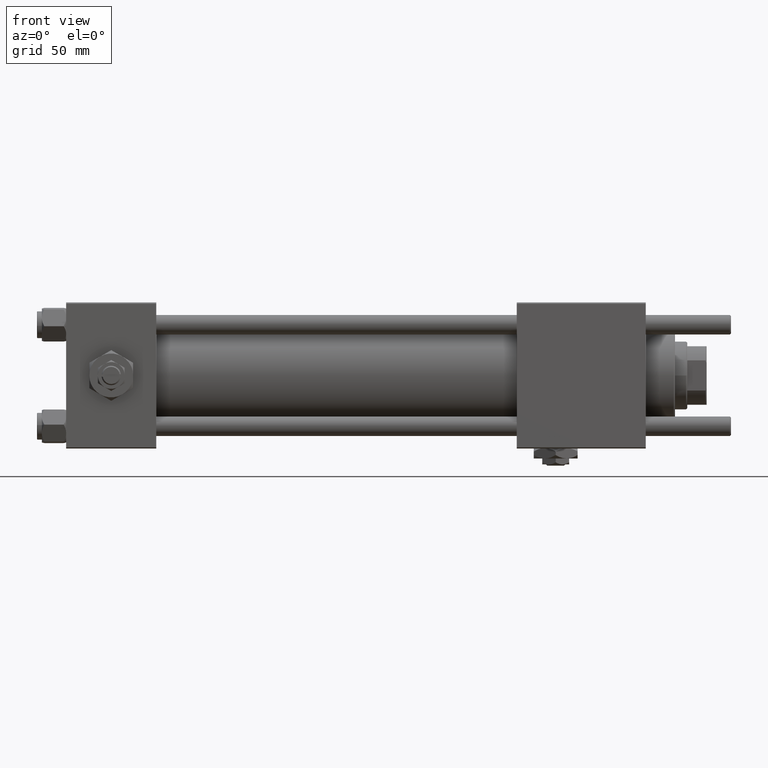
[diagram: clean part render]
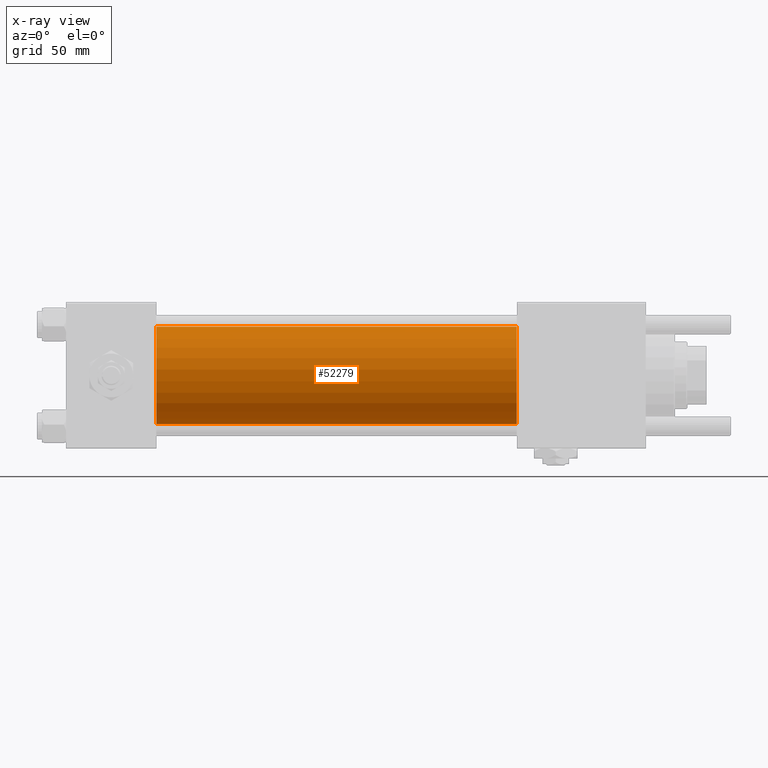
[diagram: x-ray — body ghosted, one internal face saturated and labeled with its STEP entity id]
A machine part, front view, then the same camera in x-ray: the body is ghosted and one INTERNAL B-rep face — a face not visible from any outside direction — is saturated and labeled: STEP entity #52279.
In plain terms, the highlighted cylindrical surface (partial cylindrical patch) has radius 20 mm, axis along (-1, -0, -0).
Its self-contained STEP definition (entity closure, byte-faithful):
#571 = DIRECTION ( 'NONE',  ( -1.000000000000000000, -0.000000000000000000, -0.000000000000000000 ) ) ;
#1231 = LINE ( 'NONE', #20033, #44180 ) ;
#4129 = CIRCLE ( 'NONE', #9970, 20.00000000000000000 ) ;
#5960 = EDGE_CURVE ( 'NONE', #46061, #17543, #1231, .T. ) ;
#7523 = VERTEX_POINT ( 'NONE', #44743 ) ;
#7704 = CARTESIAN_POINT ( 'NONE',  ( 185.0000000000000000, -2.602085213965210642E-15, 0.000000000000000000 ) ) ;
#8939 = DIRECTION ( 'NONE',  ( 0.000000000000000000, 0.000000000000000000, -1.000000000000000000 ) ) ;
#9126 = EDGE_CURVE ( 'NONE', #17543, #46551, #4129, .T. ) ;
#9919 = ORIENTED_EDGE ( 'NONE', *, *, #29255, .T. ) ;
#9970 = AXIS2_PLACEMENT_3D ( 'NONE', #49542, #18471, #8939 ) ;
#13449 = DIRECTION ( 'NONE',  ( 0.000000000000000000, 0.000000000000000000, -1.000000000000000000 ) ) ;
#17120 = CIRCLE ( 'NONE', #36205, 20.00000000000000000 ) ;
#17252 = DIRECTION ( 'NONE',  ( 0.000000000000000000, 0.000000000000000000, 1.000000000000000000 ) ) ;
#17543 = VERTEX_POINT ( 'NONE', #46897 ) ;
#18471 = DIRECTION ( 'NONE',  ( 1.000000000000000000, 0.000000000000000000, 0.000000000000000000 ) ) ;
#20033 = CARTESIAN_POINT ( 'NONE',  ( 185.0000000000000000, -2.602085213965210642E-15, 20.00000000000000000 ) ) ;
#21151 = FACE_OUTER_BOUND ( 'NONE', #49592, .T. ) ;
#23266 = LINE ( 'NONE', #59075, #52266 ) ;
#27589 = CARTESIAN_POINT ( 'NONE',  ( 185.0000000000000000, -2.602085213965210642E-15, 20.00000000000000000 ) ) ;
#29255 = EDGE_CURVE ( 'NONE', #7523, #46551, #23266, .T. ) ;
#29479 = AXIS2_PLACEMENT_3D ( 'NONE', #7704, #52800, #17252 ) ;
#33749 = CARTESIAN_POINT ( 'NONE',  ( 37.00000000000000000, -1.527916156705042519E-16, -20.00000000000000000 ) ) ;
#35744 = CYLINDRICAL_SURFACE ( 'NONE', #29479, 20.00000000000000000 ) ;
#36122 = DIRECTION ( 'NONE',  ( 1.000000000000000000, 0.000000000000000000, 0.000000000000000000 ) ) ;
#36205 = AXIS2_PLACEMENT_3D ( 'NONE', #43923, #36122, #13449 ) ;
#38420 = ORIENTED_EDGE ( 'NONE', *, *, #5960, .F. ) ;
#43923 = CARTESIAN_POINT ( 'NONE',  ( 185.0000000000000000, -2.602085213965210642E-15, 0.000000000000000000 ) ) ;
#44180 = VECTOR ( 'NONE', #56744, 1000.000000000000000 ) ;
#44743 = CARTESIAN_POINT ( 'NONE',  ( 185.0000000000000000, -1.527916156705042519E-16, -20.00000000000000000 ) ) ;
#46061 = VERTEX_POINT ( 'NONE', #27589 ) ;
#46551 = VERTEX_POINT ( 'NONE', #33749 ) ;
#46897 = CARTESIAN_POINT ( 'NONE',  ( 37.00000000000000000, -2.602085213965210642E-15, 20.00000000000000000 ) ) ;
#49542 = CARTESIAN_POINT ( 'NONE',  ( 37.00000000000000000, -2.602085213965210642E-15, 0.000000000000000000 ) ) ;
#49592 = EDGE_LOOP ( 'NONE', ( #55085, #9919, #56838, #38420 ) ) ;
#52266 = VECTOR ( 'NONE', #571, 1000.000000000000000 ) ;
#52279 = ADVANCED_FACE ( 'NONE', ( #21151 ), #35744, .F. ) ;
#52800 = DIRECTION ( 'NONE',  ( -1.000000000000000000, -0.000000000000000000, -0.000000000000000000 ) ) ;
#52914 = EDGE_CURVE ( 'NONE', #46061, #7523, #17120, .T. ) ;
#55085 = ORIENTED_EDGE ( 'NONE', *, *, #52914, .T. ) ;
#56744 = DIRECTION ( 'NONE',  ( -1.000000000000000000, -0.000000000000000000, -0.000000000000000000 ) ) ;
#56838 = ORIENTED_EDGE ( 'NONE', *, *, #9126, .F. ) ;
#59075 = CARTESIAN_POINT ( 'NONE',  ( 185.0000000000000000, -1.527916156705042519E-16, -20.00000000000000000 ) ) ;